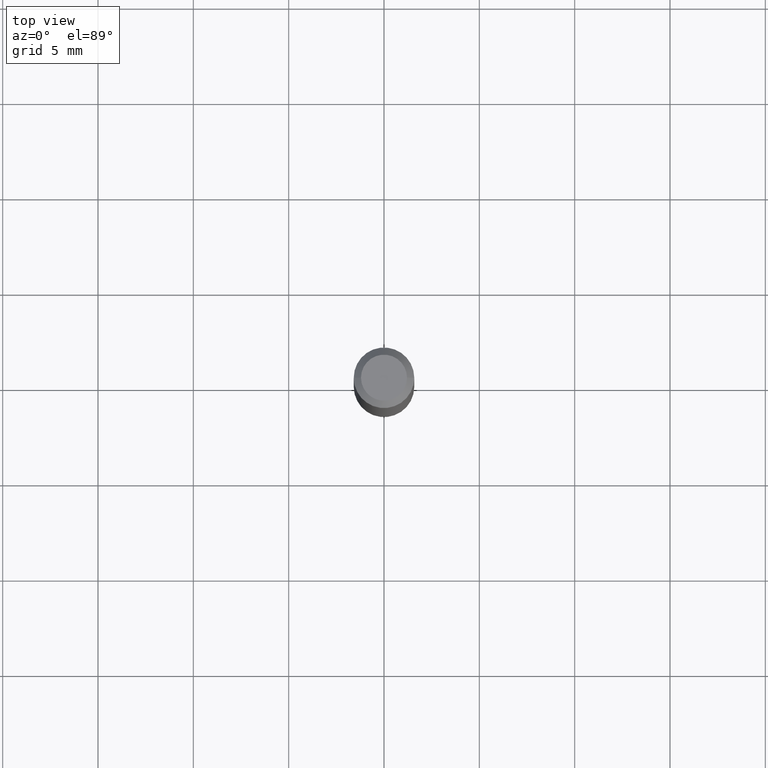
[diagram: clean part render]
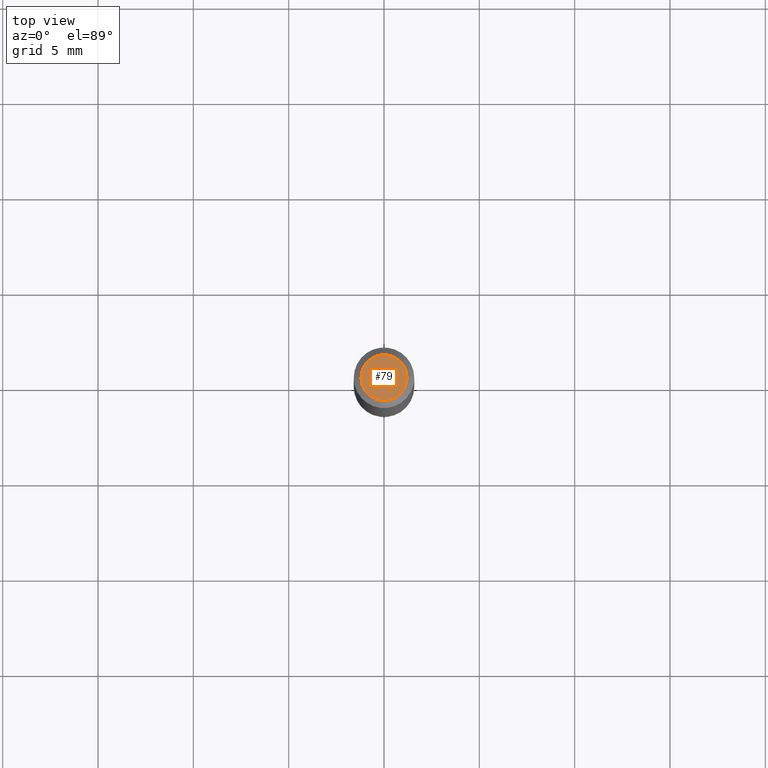
[diagram: same view with one face highlighted and labeled with its STEP entity id]
A machine part, top view. The second image highlights one B-rep face of the part: STEP entity #79.
In plain terms, the highlighted planar face has unit normal (0, -0, -1).
Its self-contained STEP definition (entity closure, byte-faithful):
#31 = AXIS2_PLACEMENT_3D ( 'NONE', #366, #188, #408 ) ;
#60 = FACE_OUTER_BOUND ( 'NONE', #459, .T. ) ;
#77 = AXIS2_PLACEMENT_3D ( 'NONE', #131, #386, #282 ) ;
#79 = ADVANCED_FACE ( 'NONE', ( #60 ), #350, .F. ) ;
#104 = CARTESIAN_POINT ( 'NONE',  ( 1.116338794773660675E-44, -1.593835938500131952E-30, -4.564927558880287530E-16 ) ) ;
#108 = CIRCLE ( 'NONE', #434, 0.04749999999999999362 ) ;
#131 = CARTESIAN_POINT ( 'NONE',  ( 3.316907271900976096E-16, 0.04749999999999999362, -3.940917415390638222E-16 ) ) ;
#185 = DIRECTION ( 'NONE',  ( 1.000000000000000000, -6.982962677686267499E-15, 4.852736867747366768E-29 ) ) ;
#188 = DIRECTION ( 'NONE',  ( -2.445468806185136597E-29, 3.491481338843145583E-15, 1.000000000000000000 ) ) ;
#213 = VERTEX_POINT ( 'NONE', #436 ) ;
#228 = CIRCLE ( 'NONE', #31, 0.04749999999999999362 ) ;
#258 = ORIENTED_EDGE ( 'NONE', *, *, #432, .T. ) ;
#281 = EDGE_CURVE ( 'NONE', #318, #213, #108, .T. ) ;
#282 = DIRECTION ( 'NONE',  ( -1.000000000000000000, 6.982962677686265922E-15, -4.876176775795935793E-29 ) ) ;
#297 = DIRECTION ( 'NONE',  ( -2.445468806185136597E-29, 3.491481338843145583E-15, 1.000000000000000000 ) ) ;
#318 = VERTEX_POINT ( 'NONE', #414 ) ;
#350 = PLANE ( 'NONE',  #77 ) ;
#366 = CARTESIAN_POINT ( 'NONE',  ( 1.116338794773660675E-44, -1.593835938500131952E-30, -4.564927558880287530E-16 ) ) ;
#386 = DIRECTION ( 'NONE',  ( 2.438088387897960049E-29, -3.491481338843145188E-15, -1.000000000000000000 ) ) ;
#408 = DIRECTION ( 'NONE',  ( 1.000000000000000000, -6.982962677686267499E-15, 4.852736867747366768E-29 ) ) ;
#414 = CARTESIAN_POINT ( 'NONE',  ( -0.04749999999999999362, 3.578768372314203110E-16, -4.564927558880312182E-16 ) ) ;
#431 = ORIENTED_EDGE ( 'NONE', *, *, #281, .T. ) ;
#432 = EDGE_CURVE ( 'NONE', #213, #318, #228, .T. ) ;
#434 = AXIS2_PLACEMENT_3D ( 'NONE', #104, #297, #185 ) ;
#436 = CARTESIAN_POINT ( 'NONE',  ( 0.04749999999999999362, -4.035134999187586019E-16, -4.564927558880262878E-16 ) ) ;
#459 = EDGE_LOOP ( 'NONE', ( #431, #258 ) ) ;